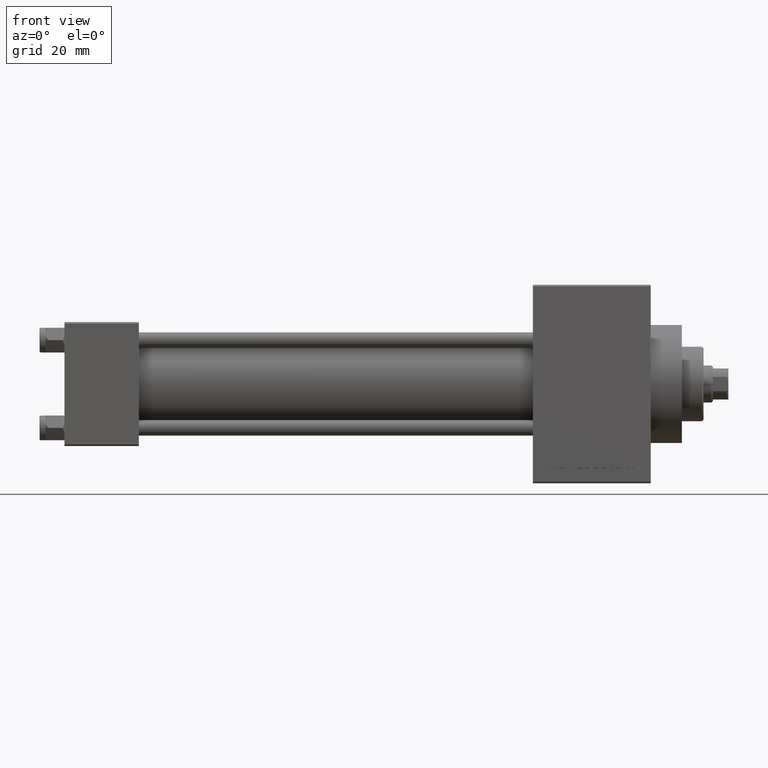
[diagram: clean part render]
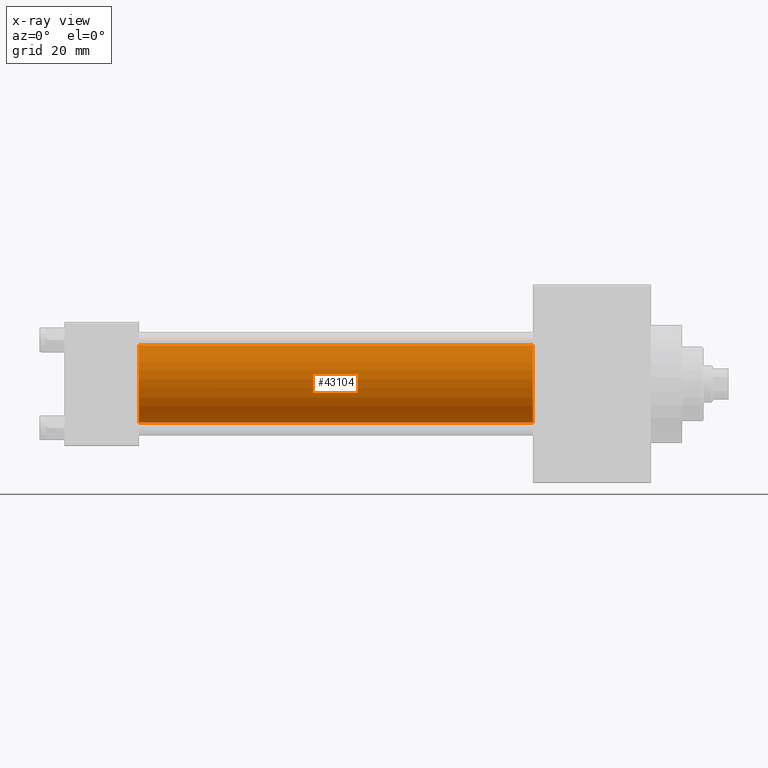
[diagram: x-ray — body ghosted, one internal face saturated and labeled with its STEP entity id]
A machine part, front view, then the same camera in x-ray: the body is ghosted and one INTERNAL B-rep face — a face not visible from any outside direction — is saturated and labeled: STEP entity #43104.
In plain terms, the highlighted cylindrical surface (partial cylindrical patch) has radius 12.5 mm, axis along (-1, -0, -0).
Its self-contained STEP definition (entity closure, byte-faithful):
#348 = ORIENTED_EDGE ( 'NONE', *, *, #16526, .T. ) ;
#2613 = VERTEX_POINT ( 'NONE', #24386 ) ;
#6578 = CARTESIAN_POINT ( 'NONE',  ( 151.0000000000000000, -2.602085213965210642E-15, 12.49999999999999645 ) ) ;
#7126 = DIRECTION ( 'NONE',  ( 0.000000000000000000, 0.000000000000000000, 1.000000000000000000 ) ) ;
#7805 = CIRCLE ( 'NONE', #38718, 12.49999999999999645 ) ;
#7810 = EDGE_CURVE ( 'NONE', #21988, #2613, #24787, .T. ) ;
#11714 = VECTOR ( 'NONE', #20176, 1000.000000000000000 ) ;
#11997 = CARTESIAN_POINT ( 'NONE',  ( 151.0000000000000000, -1.071276715031019515E-15, -12.49999999999999645 ) ) ;
#14553 = CYLINDRICAL_SURFACE ( 'NONE', #33250, 12.49999999999999645 ) ;
#14791 = DIRECTION ( 'NONE',  ( -1.000000000000000000, -0.000000000000000000, -0.000000000000000000 ) ) ;
#16318 = ORIENTED_EDGE ( 'NONE', *, *, #7810, .F. ) ;
#16526 = EDGE_CURVE ( 'NONE', #21988, #38249, #42256, .T. ) ;
#20176 = DIRECTION ( 'NONE',  ( -1.000000000000000000, -0.000000000000000000, -0.000000000000000000 ) ) ;
#21545 = DIRECTION ( 'NONE',  ( -1.000000000000000000, -0.000000000000000000, -0.000000000000000000 ) ) ;
#21988 = VERTEX_POINT ( 'NONE', #6578 ) ;
#24386 = CARTESIAN_POINT ( 'NONE',  ( 24.00000000000000000, -2.602085213965210642E-15, 12.49999999999999645 ) ) ;
#24787 = LINE ( 'NONE', #36440, #31768 ) ;
#26111 = CARTESIAN_POINT ( 'NONE',  ( 24.00000000000000000, -2.602085213965210642E-15, 0.000000000000000000 ) ) ;
#26471 = FACE_OUTER_BOUND ( 'NONE', #30700, .T. ) ;
#29593 = DIRECTION ( 'NONE',  ( 1.000000000000000000, 0.000000000000000000, 0.000000000000000000 ) ) ;
#29711 = CARTESIAN_POINT ( 'NONE',  ( 151.0000000000000000, -2.602085213965210642E-15, 0.000000000000000000 ) ) ;
#30504 = CARTESIAN_POINT ( 'NONE',  ( 24.00000000000000000, -1.071276715031019515E-15, -12.49999999999999645 ) ) ;
#30700 = EDGE_LOOP ( 'NONE', ( #348, #37381, #45743, #16318 ) ) ;
#31768 = VECTOR ( 'NONE', #21545, 1000.000000000000000 ) ;
#31943 = AXIS2_PLACEMENT_3D ( 'NONE', #38839, #42071, #46518 ) ;
#33250 = AXIS2_PLACEMENT_3D ( 'NONE', #29711, #14791, #7126 ) ;
#36440 = CARTESIAN_POINT ( 'NONE',  ( 151.0000000000000000, -2.602085213965210642E-15, 12.49999999999999645 ) ) ;
#37381 = ORIENTED_EDGE ( 'NONE', *, *, #40707, .T. ) ;
#38249 = VERTEX_POINT ( 'NONE', #11997 ) ;
#38718 = AXIS2_PLACEMENT_3D ( 'NONE', #26111, #29593, #48700 ) ;
#38819 = CARTESIAN_POINT ( 'NONE',  ( 151.0000000000000000, -1.071276715031019515E-15, -12.49999999999999645 ) ) ;
#38839 = CARTESIAN_POINT ( 'NONE',  ( 151.0000000000000000, -2.602085213965210642E-15, 0.000000000000000000 ) ) ;
#40707 = EDGE_CURVE ( 'NONE', #38249, #46674, #43023, .T. ) ;
#41593 = EDGE_CURVE ( 'NONE', #2613, #46674, #7805, .T. ) ;
#42071 = DIRECTION ( 'NONE',  ( 1.000000000000000000, 0.000000000000000000, 0.000000000000000000 ) ) ;
#42256 = CIRCLE ( 'NONE', #31943, 12.49999999999999645 ) ;
#43023 = LINE ( 'NONE', #38819, #11714 ) ;
#43104 = ADVANCED_FACE ( 'NONE', ( #26471 ), #14553, .F. ) ;
#45743 = ORIENTED_EDGE ( 'NONE', *, *, #41593, .F. ) ;
#46518 = DIRECTION ( 'NONE',  ( 0.000000000000000000, 0.000000000000000000, -1.000000000000000000 ) ) ;
#46674 = VERTEX_POINT ( 'NONE', #30504 ) ;
#48700 = DIRECTION ( 'NONE',  ( 0.000000000000000000, 0.000000000000000000, -1.000000000000000000 ) ) ;